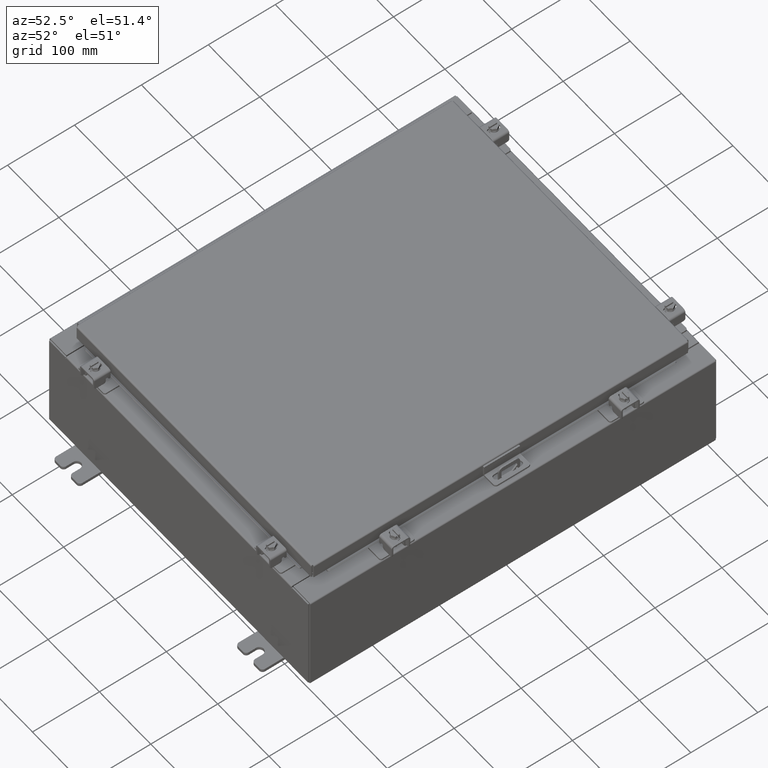
[diagram: clean part render]
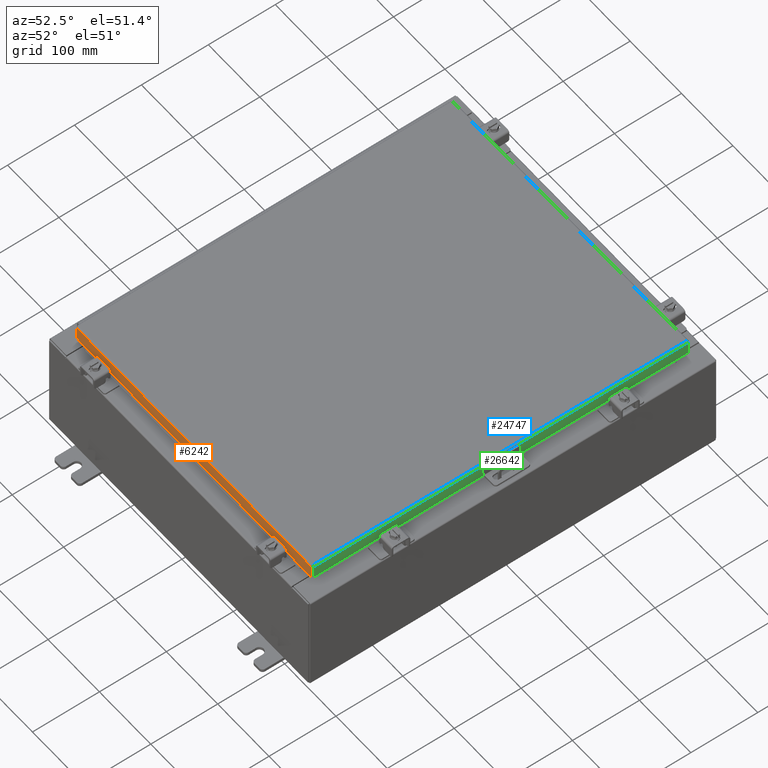
[diagram: same view with three faces highlighted in distinct colors, each labeled with its STEP entity id]
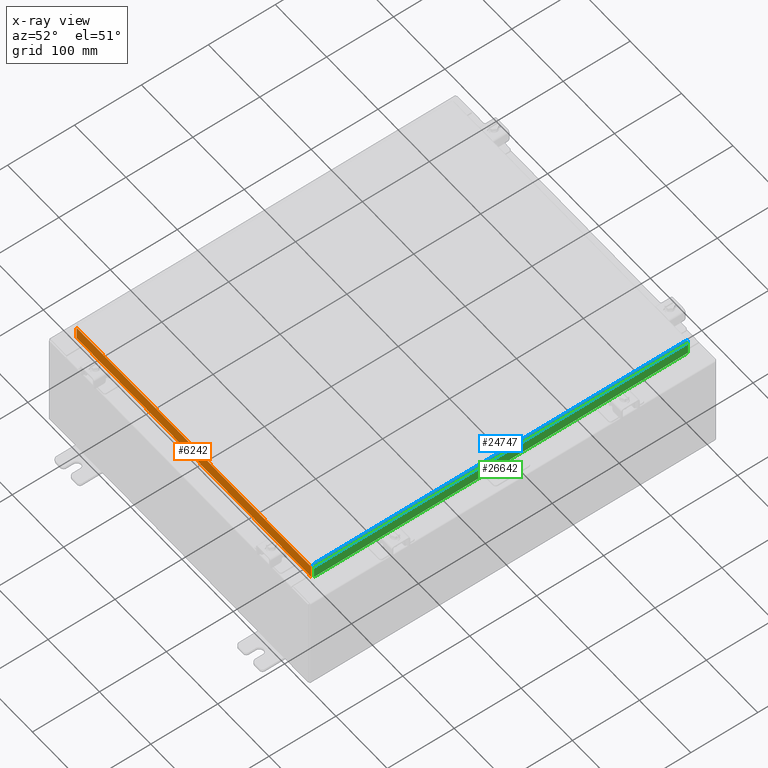
[diagram: x-ray of the same camera — body ghosted, the three highlighted faces saturated]
A machine part, auxiliary view with three faces highlighted in distinct colors.
The next image is the same camera in x-ray (body ghosted, the three faces saturated) — at least one of them is partly hidden behind the body in this view.
Their STEP definitions:

[orange] entity #6242 — the highlighted planar face has unit normal (-0, 1, -0).
#243 = EDGE_CURVE ( 'NONE', #2468, #16243, #2100, .T. ) ;
#531 = CARTESIAN_POINT ( 'NONE',  ( 8.239157864376267100, -11.09399999999999900, -0.8500000000000017500 ) ) ;
#1459 = DIRECTION ( 'NONE',  ( 1.000000000000000000, 1.203722403024570700E-016, -1.203722403024570700E-016 ) ) ;
#2100 = LINE ( 'NONE', #5474, #22118 ) ;
#2468 = VERTEX_POINT ( 'NONE', #5878 ) ;
#2822 = VECTOR ( 'NONE', #10636, 39.37007874015748100 ) ;
#3071 = CARTESIAN_POINT ( 'NONE',  ( -8.989157864376267100, -11.09400000000000100, 3.153347883512815000E-014 ) ) ;
#3918 = FACE_OUTER_BOUND ( 'NONE', #9372, .T. ) ;
#4651 = VECTOR ( 'NONE', #1459, 39.37007874015748100 ) ;
#4828 = VERTEX_POINT ( 'NONE', #24912 ) ;
#5001 = EDGE_CURVE ( 'NONE', #25973, #25195, #9473, .T. ) ;
#5087 = CARTESIAN_POINT ( 'NONE',  ( -8.989157864376267100, -11.09400000000000700, -0.8499999999999975400 ) ) ;
#5474 = CARTESIAN_POINT ( 'NONE',  ( 8.989157864376267100, -11.09400000000000100, -0.07469999999999978000 ) ) ;
#5878 = CARTESIAN_POINT ( 'NONE',  ( 8.989157864376267100, -11.09400000000000100, -0.08769999999999897300 ) ) ;
#6242 = ADVANCED_FACE ( 'NONE', ( #3918 ), #9687, .F. ) ;
#6827 = VERTEX_POINT ( 'NONE', #26976 ) ;
#6847 = LINE ( 'NONE', #531, #11927 ) ;
#7181 = CARTESIAN_POINT ( 'NONE',  ( 1.335409633915462800E-015, -11.09400000000000100, 3.153347883512815000E-014 ) ) ;
#7650 = CARTESIAN_POINT ( 'NONE',  ( -8.989157864376267100, -11.09400000000000100, -0.08769999999999789100 ) ) ;
#8909 = CARTESIAN_POINT ( 'NONE',  ( 9.077999999999999400, -11.09400000000000100, -0.08770000000000007000 ) ) ;
#9236 = LINE ( 'NONE', #24401, #23372 ) ;
#9354 = DIRECTION ( 'NONE',  ( -1.000000000000000000, -1.203722403024570700E-016, 1.203722403024570700E-016 ) ) ;
#9372 = EDGE_LOOP ( 'NONE', ( #21887, #23041, #22971, #11271, #18765, #28675 ) ) ;
#9473 = LINE ( 'NONE', #3071, #2822 ) ;
#9555 = EDGE_CURVE ( 'NONE', #16243, #6827, #9236, .T. ) ;
#9687 = PLANE ( 'NONE',  #19475 ) ;
#10636 = DIRECTION ( 'NONE',  ( 0.0000000000000000000, -2.818880942772360100E-015, -1.000000000000000000 ) ) ;
#11271 = ORIENTED_EDGE ( 'NONE', *, *, #20862, .F. ) ;
#11325 = LINE ( 'NONE', #8909, #4651 ) ;
#11927 = VECTOR ( 'NONE', #15537, 39.37007874015748100 ) ;
#12130 = DIRECTION ( 'NONE',  ( -1.000000000000000000, -1.203722403024570700E-016, 1.203722403024570700E-016 ) ) ;
#12208 = DIRECTION ( 'NONE',  ( 0.0000000000000000000, 2.818880942772360100E-015, 1.000000000000000000 ) ) ;
#13613 = CARTESIAN_POINT ( 'NONE',  ( 8.989157864376267100, -11.09400000000000300, -0.8499999999999996400 ) ) ;
#15537 = DIRECTION ( 'NONE',  ( -1.000000000000000000, 0.0000000000000000000, 0.0000000000000000000 ) ) ;
#16243 = VERTEX_POINT ( 'NONE', #13613 ) ;
#18765 = ORIENTED_EDGE ( 'NONE', *, *, #9555, .F. ) ;
#19475 = AXIS2_PLACEMENT_3D ( 'NONE', #7181, #27236, #12208 ) ;
#20480 = DIRECTION ( 'NONE',  ( -0.0000000000000000000, -2.818880942772360100E-015, -1.000000000000000000 ) ) ;
#20862 = EDGE_CURVE ( 'NONE', #6827, #4828, #6847, .T. ) ;
#21887 = ORIENTED_EDGE ( 'NONE', *, *, #29556, .F. ) ;
#22118 = VECTOR ( 'NONE', #20480, 39.37007874015748100 ) ;
#22971 = ORIENTED_EDGE ( 'NONE', *, *, #30288, .F. ) ;
#23041 = ORIENTED_EDGE ( 'NONE', *, *, #5001, .T. ) ;
#23372 = VECTOR ( 'NONE', #9354, 39.37007874015748100 ) ;
#24252 = VECTOR ( 'NONE', #12130, 39.37007874015748100 ) ;
#24401 = CARTESIAN_POINT ( 'NONE',  ( 9.077999999999999400, -11.09400000000000300, -0.8499999999999996400 ) ) ;
#24912 = CARTESIAN_POINT ( 'NONE',  ( -8.239157864376267100, -11.09399999999999900, -0.8500000000000017500 ) ) ;
#25195 = VERTEX_POINT ( 'NONE', #5087 ) ;
#25973 = VERTEX_POINT ( 'NONE', #7650 ) ;
#26976 = CARTESIAN_POINT ( 'NONE',  ( 8.239157864376267100, -11.09399999999999900, -0.8500000000000017500 ) ) ;
#27171 = CARTESIAN_POINT ( 'NONE',  ( 9.077999999999999400, -11.09400000000000300, -0.8499999999999996400 ) ) ;
#27236 = DIRECTION ( 'NONE',  ( -1.203722403024574200E-016, 1.000000000000000000, -2.818880942772360100E-015 ) ) ;
#28675 = ORIENTED_EDGE ( 'NONE', *, *, #243, .F. ) ;
#29556 = EDGE_CURVE ( 'NONE', #25973, #2468, #11325, .T. ) ;
#30107 = LINE ( 'NONE', #27171, #24252 ) ;
#30288 = EDGE_CURVE ( 'NONE', #4828, #25195, #30107, .T. ) ;

[blue] entity #24747 — the highlighted cylindrical surface (edge-blend (fillet) strip) has radius 2.2276 mm, axis along (-0, -1, -0).
#185 = CARTESIAN_POINT ( 'NONE',  ( 8.990299999999999500, 11.00630000000000000, -2.048885995248197400E-016 ) ) ;
#697 = LINE ( 'NONE', #24239, #19897 ) ;
#2119 = DIRECTION ( 'NONE',  ( 0.0000000000000000000, 1.000000000000000000, 0.0000000000000000000 ) ) ;
#2699 = CARTESIAN_POINT ( 'NONE',  ( 9.034467384578528400, 11.00591928812542400, -0.01106893374133176100 ) ) ;
#5221 = CARTESIAN_POINT ( 'NONE',  ( 9.060430782078317000, 11.00563375421949200, -0.03380425265820009900 ) ) ;
#5395 = CARTESIAN_POINT ( 'NONE',  ( 9.077999999999999400, 11.00515786437627100, -0.08770000000000007000 ) ) ;
#7510 = CARTESIAN_POINT ( 'NONE',  ( 9.066931066258664600, -11.00553857625084800, -0.04353261542147222900 ) ) ;
#7721 = CARTESIAN_POINT ( 'NONE',  ( 9.075717403743809100, 11.00534822031356400, -0.06474471054169121700 ) ) ;
#8915 = ORIENTED_EDGE ( 'NONE', *, *, #18888, .F. ) ;
#10021 = CARTESIAN_POINT ( 'NONE',  ( 9.044195747341797500, -11.00582411015677800, -0.01756921792167976500 ) ) ;
#10266 = CARTESIAN_POINT ( 'NONE',  ( 9.077999999999999400, 11.00515786437627100, -0.08770000000000007000 ) ) ;
#12342 = CYLINDRICAL_SURFACE ( 'NONE', #32161, 0.08770000000000026400 ) ;
#12551 = CARTESIAN_POINT ( 'NONE',  ( 9.013255289458308900, -11.00610964406271100, -0.002282596256188923000 ) ) ;
#13166 = EDGE_CURVE ( 'NONE', #19388, #21763, #15986, .T. ) ;
#13216 = DIRECTION ( 'NONE',  ( -0.0000000000000000000, -1.000000000000000000, -0.0000000000000000000 ) ) ;
#13834 = ORIENTED_EDGE ( 'NONE', *, *, #30221, .F. ) ;
#14290 = CARTESIAN_POINT ( 'NONE',  ( 8.990299999999999500, 11.00630000000000000, -2.048885995248197400E-016 ) ) ;
#14476 = ORIENTED_EDGE ( 'NONE', *, *, #13166, .F. ) ;
#15083 = CARTESIAN_POINT ( 'NONE',  ( 8.990299999999997700, -11.00630000000000000, -2.048885995248197400E-016 ) ) ;
#15198 = CARTESIAN_POINT ( 'NONE',  ( 9.001779903154989900, 11.00620482203135200, -2.037881236484656600E-016 ) ) ;
#15986 = LINE ( 'NONE', #32141, #27730 ) ;
#16810 = EDGE_LOOP ( 'NONE', ( #14476, #18399, #13834, #8915 ) ) ;
#17709 = CARTESIAN_POINT ( 'NONE',  ( 9.013255289458310700, 11.00610964406271500, -0.002282596256188923400 ) ) ;
#18399 = ORIENTED_EDGE ( 'NONE', *, *, #29207, .F. ) ;
#18554 = B_SPLINE_CURVE_WITH_KNOTS ( 'NONE', 3,
 ( #185, #15198, #17709, #2699, #20226, #5221, #22764, #7721, #25288, #10266 ),
 .UNSPECIFIED., .F., .F.,
 ( 4, 2, 2, 2, 4 ),
 ( 0.0000000000000000000, 0.2500000000000000000, 0.5000000000000000000, 0.7500000000000000000, 1.000000000000000000 ),
 .UNSPECIFIED. ) ;
#18888 = EDGE_CURVE ( 'NONE', #21763, #20186, #18554, .T. ) ;
#19168 = DIRECTION ( 'NONE',  ( 0.0000000000000000000, -1.000000000000000000, 0.0000000000000000000 ) ) ;
#19388 = VERTEX_POINT ( 'NONE', #22608 ) ;
#19897 = VECTOR ( 'NONE', #19168, 39.37007874015748100 ) ;
#19997 = CARTESIAN_POINT ( 'NONE',  ( 9.077999999999999400, -11.00525304234491000, -0.07622009684500735700 ) ) ;
#20186 = VERTEX_POINT ( 'NONE', #5395 ) ;
#20226 = CARTESIAN_POINT ( 'NONE',  ( 9.044195747341799300, 11.00582411015678200, -0.01756921792167976500 ) ) ;
#20783 = DIRECTION ( 'NONE',  ( 1.000000000000000000, 0.0000000000000000000, 2.725618009642215600E-015 ) ) ;
#21763 = VERTEX_POINT ( 'NONE', #14290 ) ;
#22531 = CARTESIAN_POINT ( 'NONE',  ( 9.075717403743809100, -11.00534822031355900, -0.06474471054169121700 ) ) ;
#22608 = CARTESIAN_POINT ( 'NONE',  ( 8.990299999999997700, -11.00630000000000000, -2.048885995248197400E-016 ) ) ;
#22764 = CARTESIAN_POINT ( 'NONE',  ( 9.066931066258666400, 11.00553857625084800, -0.04353261542147223600 ) ) ;
#22974 = B_SPLINE_CURVE_WITH_KNOTS ( 'NONE', 3,
 ( #29992, #19997, #22531, #7510, #25071, #10021, #27576, #12551, #30089, #15083 ),
 .UNSPECIFIED., .F., .F.,
 ( 4, 2, 2, 2, 4 ),
 ( 0.0000000000000000000, 0.2500000000000000000, 0.5000000000000000000, 0.7500000000000000000, 1.000000000000000000 ),
 .UNSPECIFIED. ) ;
#23314 = CARTESIAN_POINT ( 'NONE',  ( 8.990299999999997700, -11.00630000000000000, -0.08770000000000030500 ) ) ;
#24239 = CARTESIAN_POINT ( 'NONE',  ( 9.077999999999999400, 0.0000000000000000000, -0.08770000000000007000 ) ) ;
#24514 = VERTEX_POINT ( 'NONE', #32394 ) ;
#24747 = ADVANCED_FACE ( 'NONE', ( #32334 ), #12342, .T. ) ;
#25071 = CARTESIAN_POINT ( 'NONE',  ( 9.060430782078318800, -11.00563375421949200, -0.03380425265820009200 ) ) ;
#25288 = CARTESIAN_POINT ( 'NONE',  ( 9.078000000000001200, 11.00525304234491700, -0.07622009684500738500 ) ) ;
#27576 = CARTESIAN_POINT ( 'NONE',  ( 9.034467384578528400, -11.00591928812542100, -0.01106893374133176100 ) ) ;
#27730 = VECTOR ( 'NONE', #2119, 39.37007874015748100 ) ;
#29207 = EDGE_CURVE ( 'NONE', #24514, #19388, #22974, .T. ) ;
#29992 = CARTESIAN_POINT ( 'NONE',  ( 9.077999999999999400, -11.00515786437626900, -0.08770000000000007000 ) ) ;
#30089 = CARTESIAN_POINT ( 'NONE',  ( 9.001779903154991700, -11.00620482203135400, -2.038214714022946300E-016 ) ) ;
#30221 = EDGE_CURVE ( 'NONE', #20186, #24514, #697, .T. ) ;
#32141 = CARTESIAN_POINT ( 'NONE',  ( 8.990299999999997700, -11.00630000000000000, -2.048885995248197400E-016 ) ) ;
#32161 = AXIS2_PLACEMENT_3D ( 'NONE', #23314, #13216, #20783 ) ;
#32334 = FACE_OUTER_BOUND ( 'NONE', #16810, .T. ) ;
#32394 = CARTESIAN_POINT ( 'NONE',  ( 9.077999999999999400, -11.00515786437626900, -0.08770000000000007000 ) ) ;

[green] entity #26642 — the highlighted planar face has unit normal (1, 0, 0).
#81 = ORIENTED_EDGE ( 'NONE', *, *, #30221, .T. ) ;
#277 = DIRECTION ( 'NONE',  ( 1.000000000000000000, 0.0000000000000000000, 2.818880942772360100E-015 ) ) ;
#697 = LINE ( 'NONE', #24239, #19897 ) ;
#858 = CARTESIAN_POINT ( 'NONE',  ( 9.078000000000001200, 11.00515786437627400, -0.8499999999999996400 ) ) ;
#1586 = LINE ( 'NONE', #25527, #20804 ) ;
#2098 = EDGE_CURVE ( 'NONE', #20942, #9962, #10237, .T. ) ;
#2598 = CARTESIAN_POINT ( 'NONE',  ( 9.078000000000001200, -11.09399999999999900, -0.8499999999999996400 ) ) ;
#3366 = CARTESIAN_POINT ( 'NONE',  ( 9.077999999999999400, -11.00515786437626900, -0.07469999999999978000 ) ) ;
#4986 = LINE ( 'NONE', #3366, #17537 ) ;
#5370 = VECTOR ( 'NONE', #13392, 39.37007874015748100 ) ;
#5395 = CARTESIAN_POINT ( 'NONE',  ( 9.077999999999999400, 11.00515786437627100, -0.08770000000000007000 ) ) ;
#5785 = EDGE_CURVE ( 'NONE', #20942, #20186, #1586, .T. ) ;
#5895 = DIRECTION ( 'NONE',  ( -2.818880942772360100E-015, -6.982962677686267500E-015, 1.000000000000000000 ) ) ;
#7528 = VERTEX_POINT ( 'NONE', #23811 ) ;
#9962 = VERTEX_POINT ( 'NONE', #26341 ) ;
#10237 = LINE ( 'NONE', #24324, #16122 ) ;
#10499 = DIRECTION ( 'NONE',  ( -2.818880942772360100E-015, -6.982962677686267500E-015, 1.000000000000000000 ) ) ;
#10513 = EDGE_LOOP ( 'NONE', ( #21996, #14849, #26251, #14217, #15971, #81 ) ) ;
#10870 = CARTESIAN_POINT ( 'NONE',  ( 9.077999999999994100, 10.25515786437627200, -0.8500000000000010900 ) ) ;
#11185 = LINE ( 'NONE', #2598, #30409 ) ;
#13392 = DIRECTION ( 'NONE',  ( 0.0000000000000000000, -1.000000000000000000, 0.0000000000000000000 ) ) ;
#13743 = AXIS2_PLACEMENT_3D ( 'NONE', #30209, #277, #17813 ) ;
#14217 = ORIENTED_EDGE ( 'NONE', *, *, #2098, .F. ) ;
#14849 = ORIENTED_EDGE ( 'NONE', *, *, #24567, .F. ) ;
#15971 = ORIENTED_EDGE ( 'NONE', *, *, #5785, .T. ) ;
#16122 = VECTOR ( 'NONE', #16959, 39.37007874015748100 ) ;
#16959 = DIRECTION ( 'NONE',  ( 0.0000000000000000000, -1.000000000000000000, 0.0000000000000000000 ) ) ;
#17537 = VECTOR ( 'NONE', #5895, 39.37007874015748100 ) ;
#17813 = DIRECTION ( 'NONE',  ( 2.818880942772360100E-015, 0.0000000000000000000, -1.000000000000000000 ) ) ;
#18070 = CARTESIAN_POINT ( 'NONE',  ( 9.078000000000001200, -11.00515786437626400, -0.8499999999999996400 ) ) ;
#19168 = DIRECTION ( 'NONE',  ( 0.0000000000000000000, -1.000000000000000000, 0.0000000000000000000 ) ) ;
#19897 = VECTOR ( 'NONE', #19168, 39.37007874015748100 ) ;
#20186 = VERTEX_POINT ( 'NONE', #5395 ) ;
#20804 = VECTOR ( 'NONE', #10499, 39.37007874015748100 ) ;
#20942 = VERTEX_POINT ( 'NONE', #858 ) ;
#21996 = ORIENTED_EDGE ( 'NONE', *, *, #30601, .F. ) ;
#23559 = EDGE_CURVE ( 'NONE', #9962, #7528, #31251, .T. ) ;
#23811 = CARTESIAN_POINT ( 'NONE',  ( 9.077999999999994100, -10.25515786437626400, -0.8500000000000010900 ) ) ;
#24147 = VERTEX_POINT ( 'NONE', #18070 ) ;
#24239 = CARTESIAN_POINT ( 'NONE',  ( 9.077999999999999400, 0.0000000000000000000, -0.08770000000000007000 ) ) ;
#24324 = CARTESIAN_POINT ( 'NONE',  ( 9.078000000000001200, -11.09399999999999900, -0.8499999999999996400 ) ) ;
#24514 = VERTEX_POINT ( 'NONE', #32394 ) ;
#24567 = EDGE_CURVE ( 'NONE', #7528, #24147, #11185, .T. ) ;
#25284 = PLANE ( 'NONE',  #13743 ) ;
#25527 = CARTESIAN_POINT ( 'NONE',  ( 9.077999999999999400, 11.00515786437626900, 1.026992214834840500E-013 ) ) ;
#26251 = ORIENTED_EDGE ( 'NONE', *, *, #23559, .F. ) ;
#26341 = CARTESIAN_POINT ( 'NONE',  ( 9.077999999999994100, 10.25515786437627200, -0.8500000000000010900 ) ) ;
#26642 = ADVANCED_FACE ( 'NONE', ( #27922 ), #25284, .T. ) ;
#27922 = FACE_OUTER_BOUND ( 'NONE', #10513, .T. ) ;
#30112 = DIRECTION ( 'NONE',  ( 0.0000000000000000000, -1.000000000000000000, 0.0000000000000000000 ) ) ;
#30209 = CARTESIAN_POINT ( 'NONE',  ( 9.077999999999999400, 0.0000000000000000000, 2.585061485449906600E-014 ) ) ;
#30221 = EDGE_CURVE ( 'NONE', #20186, #24514, #697, .T. ) ;
#30409 = VECTOR ( 'NONE', #30112, 39.37007874015748100 ) ;
#30601 = EDGE_CURVE ( 'NONE', #24147, #24514, #4986, .T. ) ;
#31251 = LINE ( 'NONE', #10870, #5370 ) ;
#32394 = CARTESIAN_POINT ( 'NONE',  ( 9.077999999999999400, -11.00515786437626900, -0.08770000000000007000 ) ) ;